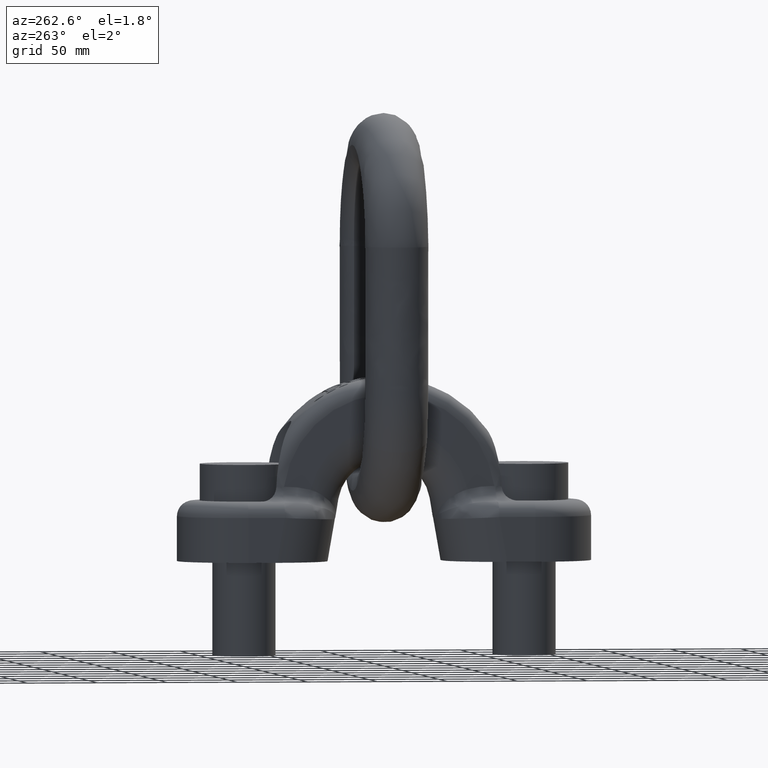
[diagram: clean part render]
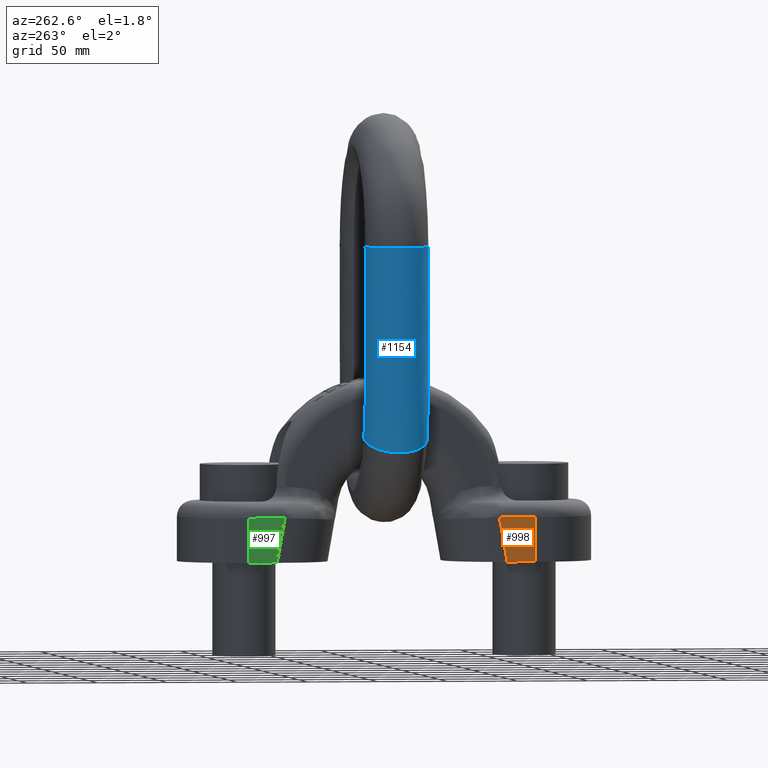
[diagram: same view with three faces highlighted in distinct colors, each labeled with its STEP entity id]
A machine part, auxiliary view with three faces highlighted in distinct colors.
Their STEP definitions:

[orange] entity #998 — the highlighted planar face has unit normal (1, 0, 0).
#744=PLANE('',#3649);
#846=FACE_OUTER_BOUND('',#1533,.T.);
#998=ADVANCED_FACE('',(#846),#744,.F.);
#1207=LINE('',#5202,#1321);
#1208=LINE('',#5205,#1322);
#1209=LINE('',#5207,#1323);
#1210=LINE('',#5209,#1324);
#1321=VECTOR('',#3910,1.);
#1322=VECTOR('',#3911,1.);
#1323=VECTOR('',#3912,1.);
#1324=VECTOR('',#3913,1.);
#1533=EDGE_LOOP('',(#2175,#2176,#2177,#2178));
#2175=ORIENTED_EDGE('',*,*,#3277,.F.);
#2176=ORIENTED_EDGE('',*,*,#3278,.T.);
#2177=ORIENTED_EDGE('',*,*,#3279,.T.);
#2178=ORIENTED_EDGE('',*,*,#3280,.T.);
#2993=VERTEX_POINT('',#5203);
#2994=VERTEX_POINT('',#5204);
#2995=VERTEX_POINT('',#5206);
#2996=VERTEX_POINT('',#5208);
#3277=EDGE_CURVE('',#2993,#2994,#1207,.T.);
#3278=EDGE_CURVE('',#2993,#2995,#1208,.T.);
#3279=EDGE_CURVE('',#2995,#2996,#1209,.T.);
#3280=EDGE_CURVE('',#2996,#2994,#1210,.T.);
#3649=AXIS2_PLACEMENT_3D('',#5210,#3914,#3915);
#3910=DIRECTION('',(0.,0.,-1.));
#3911=DIRECTION('',(0.,1.,-4.58769844886429E-16));
#3912=DIRECTION('',(0.,-0.17364817766693,-0.984807753012208));
#3913=DIRECTION('',(0.,-1.,0.));
#3914=DIRECTION('',(1.,0.,0.));
#3915=DIRECTION('',(0.,0.,-1.));
#5202=CARTESIAN_POINT('',(-45.,-102.5,272.));
#5203=CARTESIAN_POINT('',(-45.,-102.5,31.75));
#5204=CARTESIAN_POINT('',(-45.,-102.5,0.));
#5205=CARTESIAN_POINT('',(-45.,102.5,31.7499999999999));
#5206=CARTESIAN_POINT('',(-45.,-76.5415513071216,31.75));
#5207=CARTESIAN_POINT('',(-45.,-80.8998691602371,7.03275119551065));
#5208=CARTESIAN_POINT('',(-45.,-82.1399329446153,0.));
#5209=CARTESIAN_POINT('',(-45.,102.5,0.));
#5210=CARTESIAN_POINT('',(-45.,102.5,272.));

[blue] entity #1154 — the highlighted face is a freeform B-spline surface patch.
#33=(
BOUNDED_CURVE()
B_SPLINE_CURVE(4,(#7284,#7285,#7286,#7287,#7288,#7289,#7290,#7291,#7292,
#7293,#7294,#7295,#7296,#7297),.UNSPECIFIED.,.T.,.F.)
B_SPLINE_CURVE_WITH_KNOTS((2,3,3,3,3,3,2),(-0.25,0.,0.25,0.5,0.75,1.,1.25),
 .UNSPECIFIED.)
CURVE()
GEOMETRIC_REPRESENTATION_ITEM()
RATIONAL_B_SPLINE_CURVE((1.0166117137858,1.0166117137858,0.958470715535492,
1.0166117137858,1.0166117137858,0.958470715535492,1.0166117137858,1.0166117137858,
0.958470715535492,1.0166117137858,1.0166117137858,0.958470715535492,1.0166117137858,
1.0166117137858))
REPRESENTATION_ITEM('')
);
#34=(
BOUNDED_CURVE()
B_SPLINE_CURVE(4,(#7495,#7496,#7497,#7498,#7499,#7500,#7501,#7502,#7503,
#7504,#7505,#7506,#7507,#7508),.UNSPECIFIED.,.T.,.F.)
B_SPLINE_CURVE_WITH_KNOTS((2,3,3,3,3,3,2),(-0.25,0.,0.25,0.5,0.75,1.,1.25),
 .UNSPECIFIED.)
CURVE()
GEOMETRIC_REPRESENTATION_ITEM()
RATIONAL_B_SPLINE_CURVE((1.0166117137858,1.0166117137858,0.958470715535492,
1.0166117137858,1.0166117137858,0.958470715535492,1.0166117137858,1.0166117137858,
0.958470715535492,1.0166117137858,1.0166117137858,0.958470715535492,1.0166117137858,
1.0166117137858))
REPRESENTATION_ITEM('')
);
#830=(
BOUNDED_SURFACE()
B_SPLINE_SURFACE(4,3,((#7818,#7819,#7820,#7821,#7822,#7823,#7824,#7825,
#7826,#7827,#7828,#7829,#7830,#7831),(#7832,#7833,#7834,#7835,#7836,#7837,
#7838,#7839,#7840,#7841,#7842,#7843,#7844,#7845),(#7846,#7847,#7848,#7849,
#7850,#7851,#7852,#7853,#7854,#7855,#7856,#7857,#7858,#7859),(#7860,#7861,
#7862,#7863,#7864,#7865,#7866,#7867,#7868,#7869,#7870,#7871,#7872,#7873),
(#7874,#7875,#7876,#7877,#7878,#7879,#7880,#7881,#7882,#7883,#7884,#7885,
#7886,#7887),(#7888,#7889,#7890,#7891,#7892,#7893,#7894,#7895,#7896,#7897,
#7898,#7899,#7900,#7901),(#7902,#7903,#7904,#7905,#7906,#7907,#7908,#7909,
#7910,#7911,#7912,#7913,#7914,#7915),(#7916,#7917,#7918,#7919,#7920,#7921,
#7922,#7923,#7924,#7925,#7926,#7927,#7928,#7929),(#7930,#7931,#7932,#7933,
#7934,#7935,#7936,#7937,#7938,#7939,#7940,#7941,#7942,#7943),(#7944,#7945,
#7946,#7947,#7948,#7949,#7950,#7951,#7952,#7953,#7954,#7955,#7956,#7957),
(#7958,#7959,#7960,#7961,#7962,#7963,#7964,#7965,#7966,#7967,#7968,#7969,
#7970,#7971),(#7972,#7973,#7974,#7975,#7976,#7977,#7978,#7979,#7980,#7981,
#7982,#7983,#7984,#7985),(#7986,#7987,#7988,#7989,#7990,#7991,#7992,#7993,
#7994,#7995,#7996,#7997,#7998,#7999),(#8000,#8001,#8002,#8003,#8004,#8005,
#8006,#8007,#8008,#8009,#8010,#8011,#8012,#8013)),.UNSPECIFIED.,.T.,.F.,
 .F.)
B_SPLINE_SURFACE_WITH_KNOTS((2,3,3,3,3,3,2),(4,1,1,1,1,1,1,1,1,1,1,4),(-0.25,
0.,0.25,0.5,0.75,1.,1.25),(0.,0.0301956962786513,0.0616307544750305,0.125500235048722,
0.52652954356125,0.673694963521801,0.713455303305868,0.720126465038452,
0.727987471572074,0.747587256894211,0.825535431106314,1.),.UNSPECIFIED.)
GEOMETRIC_REPRESENTATION_ITEM()
RATIONAL_B_SPLINE_SURFACE(((1.0166117137858,1.0166117137858,1.0166117137858,
1.0166117137858,1.01661171378581,1.0166117137858,1.0166117137858,1.0166117137858,
1.0166117137858,1.0166117137858,1.01661171378581,1.0166117137858,1.0166117137858,
1.0166117137858),(1.0166117137858,1.0166117137858,1.0166117137858,1.0166117137858,
1.01661171378581,1.0166117137858,1.0166117137858,1.0166117137858,1.0166117137858,
1.0166117137858,1.01661171378581,1.0166117137858,1.0166117137858,1.0166117137858),
(0.958470715535492,0.958470715535492,0.958470715535493,0.958470715535492,
0.958470715535493,0.958470715535491,0.958470715535493,0.958470715535493,
0.958470715535492,0.958470715535492,0.958470715535492,0.958470715535493,
0.958470715535492,0.958470715535492),(1.0166117137858,1.0166117137858,1.0166117137858,
1.0166117137858,1.01661171378581,1.0166117137858,1.0166117137858,1.0166117137858,
1.0166117137858,1.0166117137858,1.01661171378581,1.0166117137858,1.0166117137858,
1.0166117137858),(1.0166117137858,1.0166117137858,1.0166117137858,1.0166117137858,
1.01661171378581,1.0166117137858,1.0166117137858,1.0166117137858,1.0166117137858,
1.0166117137858,1.01661171378581,1.0166117137858,1.0166117137858,1.0166117137858),
(0.958470715535492,0.958470715535492,0.958470715535493,0.958470715535492,
0.958470715535493,0.958470715535491,0.958470715535493,0.958470715535493,
0.958470715535492,0.958470715535492,0.958470715535492,0.958470715535493,
0.958470715535492,0.958470715535492),(1.0166117137858,1.0166117137858,1.0166117137858,
1.0166117137858,1.01661171378581,1.0166117137858,1.0166117137858,1.0166117137858,
1.0166117137858,1.0166117137858,1.01661171378581,1.0166117137858,1.0166117137858,
1.0166117137858),(1.0166117137858,1.0166117137858,1.0166117137858,1.0166117137858,
1.01661171378581,1.0166117137858,1.0166117137858,1.0166117137858,1.0166117137858,
1.0166117137858,1.01661171378581,1.0166117137858,1.0166117137858,1.0166117137858),
(0.958470715535492,0.958470715535492,0.958470715535493,0.958470715535492,
0.958470715535493,0.958470715535491,0.958470715535493,0.958470715535493,
0.958470715535492,0.958470715535492,0.958470715535492,0.958470715535493,
0.958470715535492,0.958470715535492),(1.0166117137858,1.0166117137858,1.0166117137858,
1.0166117137858,1.01661171378581,1.0166117137858,1.0166117137858,1.0166117137858,
1.0166117137858,1.0166117137858,1.01661171378581,1.0166117137858,1.0166117137858,
1.0166117137858),(1.0166117137858,1.0166117137858,1.0166117137858,1.0166117137858,
1.01661171378581,1.0166117137858,1.0166117137858,1.0166117137858,1.0166117137858,
1.0166117137858,1.01661171378581,1.0166117137858,1.0166117137858,1.0166117137858),
(0.958470715535492,0.958470715535492,0.958470715535493,0.958470715535492,
0.958470715535493,0.958470715535491,0.958470715535493,0.958470715535493,
0.958470715535492,0.958470715535492,0.958470715535492,0.958470715535493,
0.958470715535492,0.958470715535492),(1.0166117137858,1.0166117137858,1.0166117137858,
1.0166117137858,1.01661171378581,1.0166117137858,1.0166117137858,1.0166117137858,
1.0166117137858,1.0166117137858,1.01661171378581,1.0166117137858,1.0166117137858,
1.0166117137858),(1.0166117137858,1.0166117137858,1.0166117137858,1.0166117137858,
1.01661171378581,1.0166117137858,1.0166117137858,1.0166117137858,1.0166117137858,
1.0166117137858,1.01661171378581,1.0166117137858,1.0166117137858,1.0166117137858)))
REPRESENTATION_ITEM('')
SURFACE()
);
#1154=ADVANCED_FACE('',(#1508,#1509),#830,.F.);
#1508=FACE_BOUND('',#1705,.T.);
#1509=FACE_BOUND('',#1706,.T.);
#1705=EDGE_LOOP('',(#2871));
#1706=EDGE_LOOP('',(#2872));
#2871=ORIENTED_EDGE('',*,*,#3573,.F.);
#2872=ORIENTED_EDGE('',*,*,#3572,.F.);
#3152=VERTEX_POINT('',#7298);
#3153=VERTEX_POINT('',#7509);
#3572=EDGE_CURVE('',#3152,#3152,#33,.T.);
#3573=EDGE_CURVE('',#3153,#3153,#34,.T.);
#7284=CARTESIAN_POINT('',(-70.0486418117582,22.5,85.2933427704464));
#7285=CARTESIAN_POINT('',(-55.7523457018072,22.5,92.2749806847748));
#7286=CARTESIAN_POINT('',(-46.256551933876,18.5225243558257,96.91227927505));
#7287=CARTESIAN_POINT('',(-42.6824779063882,7.95495128834865,98.657688753632));
#7288=CARTESIAN_POINT('',(-42.6824779063882,-7.95495128834866,98.657688753632));
#7289=CARTESIAN_POINT('',(-46.256551933876,-18.5225243558257,96.9122792750499));
#7290=CARTESIAN_POINT('',(-55.7523457018072,-22.5,92.2749806847748));
#7291=CARTESIAN_POINT('',(-70.0486418117582,-22.5,85.2933427704463));
#7292=CARTESIAN_POINT('',(-79.5444355796894,-18.5225243558257,80.6560441801712));
#7293=CARTESIAN_POINT('',(-83.1185096071771,-7.95495128834865,78.910634701589));
#7294=CARTESIAN_POINT('',(-83.1185096071771,7.95495128834865,78.910634701589));
#7295=CARTESIAN_POINT('',(-79.5444355796894,18.5225243558257,80.6560441801712));
#7296=CARTESIAN_POINT('',(-70.0486418117582,22.5,85.2933427704464));
#7297=CARTESIAN_POINT('',(-55.7523457018072,22.5,92.2749806847748));
#7298=CARTESIAN_POINT('',(-62.9004937567827,22.5,88.7841617276106));
#7495=CARTESIAN_POINT('',(-62.0451470897856,22.5,224.499338483112));
#7496=CARTESIAN_POINT('',(-77.9550748930975,22.5,224.500926229327));
#7497=CARTESIAN_POINT('',(-88.522664716434,18.5225243558257,224.501980831896));
#7498=CARTESIAN_POINT('',(-92.5001466672619,7.95495128834866,224.50237776845));
#7499=CARTESIAN_POINT('',(-92.500146667262,-7.95495128834866,224.50237776845));
#7500=CARTESIAN_POINT('',(-88.522664716434,-18.5225243558257,224.501980831896));
#7501=CARTESIAN_POINT('',(-77.9550748930974,-22.5,224.500926229327));
#7502=CARTESIAN_POINT('',(-62.0451470897856,-22.5,224.499338483112));
#7503=CARTESIAN_POINT('',(-51.477557266449,-18.5225243558257,224.498283880543));
#7504=CARTESIAN_POINT('',(-47.500075315621,-7.95495128834866,224.497886943989));
#7505=CARTESIAN_POINT('',(-47.500075315621,7.95495128834866,224.497886943989));
#7506=CARTESIAN_POINT('',(-51.477557266449,18.5225243558257,224.498283880543));
#7507=CARTESIAN_POINT('',(-62.0451470897856,22.5,224.499338483112));
#7508=CARTESIAN_POINT('',(-77.9550748930975,22.5,224.500926229327));
#7509=CARTESIAN_POINT('',(-70.0001109914415,22.5,224.500132356219));
#7818=CARTESIAN_POINT('',(-62.0451470897856,22.5,224.499338483112));
#7819=CARTESIAN_POINT('',(-62.0640406104352,22.5,222.791607818432));
#7820=CARTESIAN_POINT('',(-62.0375388386696,22.5,219.312061757263));
#7821=CARTESIAN_POINT('',(-62.0472889828557,22.5000000000001,212.604161770742));
#7822=CARTESIAN_POINT('',(-62.043259017658,22.4999999999999,186.197509178475));
#7823=CARTESIAN_POINT('',(-62.0458549339541,22.5000000000001,158.05746853171));
#7824=CARTESIAN_POINT('',(-62.0449270768642,22.4999999999999,129.874953583138));
#7825=CARTESIAN_POINT('',(-62.0447203945396,22.5,121.894860004289));
#7826=CARTESIAN_POINT('',(-62.0459300764148,22.5,119.483682202774));
#7827=CARTESIAN_POINT('',(-62.0388185165922,22.5,118.245066610178));
#7828=CARTESIAN_POINT('',(-61.919485424896,22.5,114.337684464879));
#7829=CARTESIAN_POINT('',(-60.7637969264693,22.5,104.797700755889));
#7830=CARTESIAN_POINT('',(-58.1065222045986,22.5,97.0848502297751));
#7831=CARTESIAN_POINT('',(-55.7523457018072,22.5,92.2749806847748));
#7832=CARTESIAN_POINT('',(-77.9550748930975,22.5,224.500926229327));
#7833=CARTESIAN_POINT('',(-77.9788131850723,22.5,222.554918565148));
#7834=CARTESIAN_POINT('',(-77.9455156960714,22.5,219.405162539273));
#7835=CARTESIAN_POINT('',(-77.9577660211312,22.5,212.574512517521));
#7836=CARTESIAN_POINT('',(-77.9527026720455,22.5,186.225665429765));
#7837=CARTESIAN_POINT('',(-77.9559642462177,22.5000000000001,158.037839755944));
#7838=CARTESIAN_POINT('',(-77.9547984633594,22.5,129.883565687387));
#7839=CARTESIAN_POINT('',(-77.9545387825164,22.5,121.886729699343));
#7840=CARTESIAN_POINT('',(-77.9560586570852,22.5,119.50272199293));
#7841=CARTESIAN_POINT('',(-77.947123515425,22.5,117.915683013602));
#7842=CARTESIAN_POINT('',(-77.7971904338426,22.5,113.017387299509));
#7843=CARTESIAN_POINT('',(-76.3451544943102,22.5,101.025869586488));
#7844=CARTESIAN_POINT('',(-73.0064880607341,22.5,91.3359420075726));
#7845=CARTESIAN_POINT('',(-70.0486418117582,22.5,85.2933427704464));
#7846=CARTESIAN_POINT('',(-88.522664716434,18.5225243558257,224.501980831896));
#7847=CARTESIAN_POINT('',(-88.5496209712296,18.5225243558257,222.397706353049));
#7848=CARTESIAN_POINT('',(-88.5118096746749,18.5225243558256,219.46700134135));
#7849=CARTESIAN_POINT('',(-88.5257206537796,18.5225243558257,212.554819081418));
#7850=CARTESIAN_POINT('',(-88.5199709171002,18.5225243558256,186.244367193737));
#7851=CARTESIAN_POINT('',(-88.5236746302617,18.5225243558257,158.024802056868));
#7852=CARTESIAN_POINT('',(-88.5223508138811,18.5225243558257,129.889285963829));
#7853=CARTESIAN_POINT('',(-88.5220559307035,18.5225243558257,121.881329440533));
#7854=CARTESIAN_POINT('',(-88.5237818394663,18.5225243558257,119.515368479777));
#7855=CARTESIAN_POINT('',(-88.5136354500175,18.5225243558257,117.696901961532));
#7856=CARTESIAN_POINT('',(-88.3433774401444,18.5225243558257,112.140428015907));
#7857=CARTESIAN_POINT('',(-86.6945035110545,18.5225243558257,98.52056816879));
#7858=CARTESIAN_POINT('',(-82.9032474612752,18.5225243558257,87.5174391975476));
#7859=CARTESIAN_POINT('',(-79.5444355796894,18.5225243558257,80.6560441801712));
#7860=CARTESIAN_POINT('',(-92.5001466672619,7.95495128834866,224.50237776845));
#7861=CARTESIAN_POINT('',(-92.5283141148888,7.95495128834867,222.338534039728));
#7862=CARTESIAN_POINT('',(-92.4888038890254,7.95495128834866,219.490276536853));
#7863=CARTESIAN_POINT('',(-92.5033399133483,7.95495128834866,212.547406768113));
#7864=CARTESIAN_POINT('',(-92.4973318306971,7.95495128834868,186.25140625656));
#7865=CARTESIAN_POINT('',(-92.5012019583276,7.95495128834864,158.019894862925));
#7866=CARTESIAN_POINT('',(-92.4998186605049,7.95495128834867,129.891438989891));
#7867=CARTESIAN_POINT('',(-92.4995105276978,7.95495128834867,121.879296864296));
#7868=CARTESIAN_POINT('',(-92.5013139846338,7.95495128834866,119.520128427317));
#7869=CARTESIAN_POINT('',(-92.4907116997257,7.95495128834868,117.614556062388));
#7870=CARTESIAN_POINT('',(-92.3128036923808,7.95495128834864,111.810353724564));
#7871=CARTESIAN_POINT('',(-90.5898429030151,7.95495128834869,97.5776103764401));
#7872=CARTESIAN_POINT('',(-86.6282389253091,7.95495128834867,86.080212141997));
#7873=CARTESIAN_POINT('',(-83.1185096071771,7.95495128834865,78.910634701589));
#7874=CARTESIAN_POINT('',(-92.500146667262,-7.95495128834866,224.50237776845));
#7875=CARTESIAN_POINT('',(-92.5283141148888,-7.95495128834866,222.338534039728));
#7876=CARTESIAN_POINT('',(-92.4888038890254,-7.95495128834866,219.490276536853));
#7877=CARTESIAN_POINT('',(-92.5033399133483,-7.95495128834865,212.547406768113));
#7878=CARTESIAN_POINT('',(-92.4973318306971,-7.95495128834868,186.25140625656));
#7879=CARTESIAN_POINT('',(-92.5012019583276,-7.95495128834864,158.019894862925));
#7880=CARTESIAN_POINT('',(-92.4998186605049,-7.95495128834867,129.891438989891));
#7881=CARTESIAN_POINT('',(-92.4995105276978,-7.95495128834866,121.879296864296));
#7882=CARTESIAN_POINT('',(-92.5013139846338,-7.95495128834866,119.520128427317));
#7883=CARTESIAN_POINT('',(-92.4907116997257,-7.95495128834866,117.614556062388));
#7884=CARTESIAN_POINT('',(-92.3128036923808,-7.95495128834865,111.810353724564));
#7885=CARTESIAN_POINT('',(-90.5898429030151,-7.95495128834867,97.5776103764401));
#7886=CARTESIAN_POINT('',(-86.6282389253091,-7.95495128834866,86.080212141997));
#7887=CARTESIAN_POINT('',(-83.1185096071771,-7.95495128834865,78.910634701589));
#7888=CARTESIAN_POINT('',(-88.522664716434,-18.5225243558257,224.501980831896));
#7889=CARTESIAN_POINT('',(-88.5496209712296,-18.5225243558257,222.397706353049));
#7890=CARTESIAN_POINT('',(-88.5118096746749,-18.5225243558256,219.46700134135));
#7891=CARTESIAN_POINT('',(-88.5257206537795,-18.5225243558257,212.554819081418));
#7892=CARTESIAN_POINT('',(-88.5199709171003,-18.5225243558256,186.244367193737));
#7893=CARTESIAN_POINT('',(-88.5236746302616,-18.5225243558257,158.024802056868));
#7894=CARTESIAN_POINT('',(-88.5223508138812,-18.5225243558257,129.889285963829));
#7895=CARTESIAN_POINT('',(-88.5220559307035,-18.5225243558257,121.881329440533));
#7896=CARTESIAN_POINT('',(-88.5237818394663,-18.5225243558257,119.515368479777));
#7897=CARTESIAN_POINT('',(-88.5136354500175,-18.5225243558257,117.696901961532));
#7898=CARTESIAN_POINT('',(-88.3433774401443,-18.5225243558257,112.140428015907));
#7899=CARTESIAN_POINT('',(-86.6945035110546,-18.5225243558257,98.52056816879));
#7900=CARTESIAN_POINT('',(-82.9032474612752,-18.5225243558257,87.5174391975476));
#7901=CARTESIAN_POINT('',(-79.5444355796894,-18.5225243558257,80.6560441801712));
#7902=CARTESIAN_POINT('',(-77.9550748930974,-22.5,224.500926229327));
#7903=CARTESIAN_POINT('',(-77.9788131850723,-22.5,222.554918565148));
#7904=CARTESIAN_POINT('',(-77.9455156960713,-22.5,219.405162539272));
#7905=CARTESIAN_POINT('',(-77.9577660211312,-22.5,212.574512517521));
#7906=CARTESIAN_POINT('',(-77.9527026720455,-22.5,186.225665429765));
#7907=CARTESIAN_POINT('',(-77.9559642462177,-22.5000000000001,158.037839755944));
#7908=CARTESIAN_POINT('',(-77.9547984633594,-22.5,129.883565687387));
#7909=CARTESIAN_POINT('',(-77.9545387825164,-22.5,121.886729699343));
#7910=CARTESIAN_POINT('',(-77.9560586570852,-22.5,119.50272199293));
#7911=CARTESIAN_POINT('',(-77.947123515425,-22.5,117.915683013602));
#7912=CARTESIAN_POINT('',(-77.7971904338426,-22.5,113.017387299509));
#7913=CARTESIAN_POINT('',(-76.3451544943102,-22.5,101.025869586488));
#7914=CARTESIAN_POINT('',(-73.0064880607341,-22.5,91.3359420075726));
#7915=CARTESIAN_POINT('',(-70.0486418117582,-22.5,85.2933427704463));
#7916=CARTESIAN_POINT('',(-62.0451470897856,-22.5,224.499338483112));
#7917=CARTESIAN_POINT('',(-62.0640406104352,-22.5,222.791607818432));
#7918=CARTESIAN_POINT('',(-62.0375388386697,-22.5,219.312061757263));
#7919=CARTESIAN_POINT('',(-62.0472889828556,-22.5,212.604161770742));
#7920=CARTESIAN_POINT('',(-62.0432590176581,-22.5,186.197509178475));
#7921=CARTESIAN_POINT('',(-62.0458549339541,-22.5000000000001,158.05746853171));
#7922=CARTESIAN_POINT('',(-62.0449270768642,-22.5,129.874953583138));
#7923=CARTESIAN_POINT('',(-62.0447203945396,-22.5,121.894860004289));
#7924=CARTESIAN_POINT('',(-62.0459300764148,-22.5,119.483682202774));
#7925=CARTESIAN_POINT('',(-62.0388185165922,-22.5,118.245066610178));
#7926=CARTESIAN_POINT('',(-61.9194854248959,-22.5,114.337684464879));
#7927=CARTESIAN_POINT('',(-60.7637969264693,-22.5,104.797700755889));
#7928=CARTESIAN_POINT('',(-58.1065222045987,-22.5,97.0848502297751));
#7929=CARTESIAN_POINT('',(-55.7523457018072,-22.5,92.2749806847748));
#7930=CARTESIAN_POINT('',(-51.477557266449,-18.5225243558257,224.498283880543));
#7931=CARTESIAN_POINT('',(-51.4932328242779,-18.5225243558257,222.948820030531));
#7932=CARTESIAN_POINT('',(-51.4712448600661,-18.5225243558256,219.250222955185));
#7933=CARTESIAN_POINT('',(-51.4793343502073,-18.5225243558257,212.623855206846));
#7934=CARTESIAN_POINT('',(-51.4759907726033,-18.5225243558256,186.178807414501));
#7935=CARTESIAN_POINT('',(-51.4781445499102,-18.5225243558257,158.070506230788));
#7936=CARTESIAN_POINT('',(-51.4773747263424,-18.5225243558257,129.869233306695));
#7937=CARTESIAN_POINT('',(-51.4772032463525,-18.5225243558257,121.900260263099));
#7938=CARTESIAN_POINT('',(-51.4782068940337,-18.5225243558257,119.471035715927));
#7939=CARTESIAN_POINT('',(-51.4723065819997,-18.5225243558257,118.463847662247));
#7940=CARTESIAN_POINT('',(-51.3732984185945,-18.5225243558257,115.21464374848));
#7941=CARTESIAN_POINT('',(-50.4144479097246,-18.5225243558257,107.303002173586));
#7942=CARTESIAN_POINT('',(-48.2097628040574,-18.5225243558257,100.9033530398));
#7943=CARTESIAN_POINT('',(-46.256551933876,-18.5225243558257,96.9122792750499));
#7944=CARTESIAN_POINT('',(-47.500075315621,-7.95495128834866,224.497886943989));
#7945=CARTESIAN_POINT('',(-47.5145396806186,-7.95495128834867,223.007992343852));
#7946=CARTESIAN_POINT('',(-47.4942506457157,-7.95495128834866,219.226947759683));
#7947=CARTESIAN_POINT('',(-47.5017150906385,-7.95495128834866,212.631267520151));
#7948=CARTESIAN_POINT('',(-47.4986298590064,-7.95495128834868,186.171768351679));
#7949=CARTESIAN_POINT('',(-47.5006172218441,-7.95495128834864,158.075413424728));
#7950=CARTESIAN_POINT('',(-47.4999068797186,-7.95495128834868,129.867080280633));
#7951=CARTESIAN_POINT('',(-47.4997486493584,-7.95495128834866,121.902292839336));
#7952=CARTESIAN_POINT('',(-47.500674748866,-7.95495128834867,119.466275768387));
#7953=CARTESIAN_POINT('',(-47.4952303322916,-7.95495128834867,118.546193561391));
#7954=CARTESIAN_POINT('',(-47.4038721663578,-7.95495128834864,115.544718039823));
#7955=CARTESIAN_POINT('',(-46.5191085177644,-7.95495128834869,108.245959965937));
#7956=CARTESIAN_POINT('',(-44.4847713400236,-7.95495128834867,102.340580095351));
#7957=CARTESIAN_POINT('',(-42.6824779063882,-7.95495128834866,98.657688753632));
#7958=CARTESIAN_POINT('',(-47.500075315621,7.95495128834866,224.497886943989));
#7959=CARTESIAN_POINT('',(-47.5145396806186,7.95495128834866,223.007992343852));
#7960=CARTESIAN_POINT('',(-47.4942506457157,7.95495128834866,219.226947759683));
#7961=CARTESIAN_POINT('',(-47.5017150906384,7.95495128834865,212.631267520151));
#7962=CARTESIAN_POINT('',(-47.4986298590065,7.95495128834867,186.171768351679));
#7963=CARTESIAN_POINT('',(-47.500617221844,7.95495128834864,158.075413424728));
#7964=CARTESIAN_POINT('',(-47.4999068797187,7.95495128834866,129.867080280633));
#7965=CARTESIAN_POINT('',(-47.4997486493584,7.95495128834866,121.902292839336));
#7966=CARTESIAN_POINT('',(-47.500674748866,7.95495128834866,119.466275768387));
#7967=CARTESIAN_POINT('',(-47.4952303322916,7.95495128834867,118.546193561391));
#7968=CARTESIAN_POINT('',(-47.4038721663578,7.95495128834864,115.544718039823));
#7969=CARTESIAN_POINT('',(-46.5191085177644,7.95495128834867,108.245959965937));
#7970=CARTESIAN_POINT('',(-44.4847713400236,7.95495128834866,102.340580095351));
#7971=CARTESIAN_POINT('',(-42.6824779063882,7.95495128834865,98.657688753632));
#7972=CARTESIAN_POINT('',(-51.477557266449,18.5225243558257,224.498283880543));
#7973=CARTESIAN_POINT('',(-51.4932328242779,18.5225243558257,222.948820030531));
#7974=CARTESIAN_POINT('',(-51.4712448600661,18.5225243558256,219.250222955185));
#7975=CARTESIAN_POINT('',(-51.4793343502073,18.5225243558257,212.623855206846));
#7976=CARTESIAN_POINT('',(-51.4759907726032,18.5225243558256,186.178807414501));
#7977=CARTESIAN_POINT('',(-51.4781445499102,18.5225243558258,158.070506230788));
#7978=CARTESIAN_POINT('',(-51.4773747263424,18.5225243558256,129.869233306695));
#7979=CARTESIAN_POINT('',(-51.4772032463525,18.5225243558257,121.900260263099));
#7980=CARTESIAN_POINT('',(-51.4782068940336,18.5225243558257,119.471035715927));
#7981=CARTESIAN_POINT('',(-51.4723065819998,18.5225243558257,118.463847662247));
#7982=CARTESIAN_POINT('',(-51.3732984185945,18.5225243558256,115.21464374848));
#7983=CARTESIAN_POINT('',(-50.4144479097246,18.5225243558257,107.303002173586));
#7984=CARTESIAN_POINT('',(-48.2097628040574,18.5225243558257,100.9033530398));
#7985=CARTESIAN_POINT('',(-46.256551933876,18.5225243558257,96.91227927505));
#7986=CARTESIAN_POINT('',(-62.0451470897856,22.5,224.499338483112));
#7987=CARTESIAN_POINT('',(-62.0640406104352,22.5,222.791607818432));
#7988=CARTESIAN_POINT('',(-62.0375388386696,22.5,219.312061757263));
#7989=CARTESIAN_POINT('',(-62.0472889828557,22.5000000000001,212.604161770742));
#7990=CARTESIAN_POINT('',(-62.043259017658,22.4999999999999,186.197509178475));
#7991=CARTESIAN_POINT('',(-62.0458549339541,22.5000000000001,158.05746853171));
#7992=CARTESIAN_POINT('',(-62.0449270768642,22.4999999999999,129.874953583138));
#7993=CARTESIAN_POINT('',(-62.0447203945396,22.5,121.894860004289));
#7994=CARTESIAN_POINT('',(-62.0459300764148,22.5,119.483682202774));
#7995=CARTESIAN_POINT('',(-62.0388185165922,22.5,118.245066610178));
#7996=CARTESIAN_POINT('',(-61.919485424896,22.5,114.337684464879));
#7997=CARTESIAN_POINT('',(-60.7637969264693,22.5,104.797700755889));
#7998=CARTESIAN_POINT('',(-58.1065222045986,22.5,97.0848502297751));
#7999=CARTESIAN_POINT('',(-55.7523457018072,22.5,92.2749806847748));
#8000=CARTESIAN_POINT('',(-77.9550748930975,22.5,224.500926229327));
#8001=CARTESIAN_POINT('',(-77.9788131850723,22.5,222.554918565148));
#8002=CARTESIAN_POINT('',(-77.9455156960714,22.5,219.405162539273));
#8003=CARTESIAN_POINT('',(-77.9577660211312,22.5,212.574512517521));
#8004=CARTESIAN_POINT('',(-77.9527026720455,22.5,186.225665429765));
#8005=CARTESIAN_POINT('',(-77.9559642462177,22.5000000000001,158.037839755944));
#8006=CARTESIAN_POINT('',(-77.9547984633594,22.5,129.883565687387));
#8007=CARTESIAN_POINT('',(-77.9545387825164,22.5,121.886729699343));
#8008=CARTESIAN_POINT('',(-77.9560586570852,22.5,119.50272199293));
#8009=CARTESIAN_POINT('',(-77.947123515425,22.5,117.915683013602));
#8010=CARTESIAN_POINT('',(-77.7971904338426,22.5,113.017387299509));
#8011=CARTESIAN_POINT('',(-76.3451544943102,22.5,101.025869586488));
#8012=CARTESIAN_POINT('',(-73.0064880607341,22.5,91.3359420075726));
#8013=CARTESIAN_POINT('',(-70.0486418117582,22.5,85.2933427704464));

[green] entity #997 — the highlighted planar face has unit normal (1, 0, 0).
#743=PLANE('',#3648);
#845=FACE_OUTER_BOUND('',#1532,.T.);
#997=ADVANCED_FACE('',(#845),#743,.F.);
#1203=LINE('',#5193,#1317);
#1204=LINE('',#5196,#1318);
#1205=LINE('',#5198,#1319);
#1206=LINE('',#5200,#1320);
#1317=VECTOR('',#3904,1.);
#1318=VECTOR('',#3905,1.);
#1319=VECTOR('',#3906,1.);
#1320=VECTOR('',#3907,1.);
#1532=EDGE_LOOP('',(#2171,#2172,#2173,#2174));
#2171=ORIENTED_EDGE('',*,*,#3273,.T.);
#2172=ORIENTED_EDGE('',*,*,#3274,.T.);
#2173=ORIENTED_EDGE('',*,*,#3275,.T.);
#2174=ORIENTED_EDGE('',*,*,#3276,.T.);
#2989=VERTEX_POINT('',#5194);
#2990=VERTEX_POINT('',#5195);
#2991=VERTEX_POINT('',#5197);
#2992=VERTEX_POINT('',#5199);
#3273=EDGE_CURVE('',#2989,#2990,#1203,.T.);
#3274=EDGE_CURVE('',#2990,#2991,#1204,.T.);
#3275=EDGE_CURVE('',#2991,#2992,#1205,.T.);
#3276=EDGE_CURVE('',#2992,#2989,#1206,.T.);
#3648=AXIS2_PLACEMENT_3D('',#5201,#3908,#3909);
#3904=DIRECTION('',(0.,-0.17364817766693,0.984807753012208));
#3905=DIRECTION('',(0.,1.,4.58769844886429E-16));
#3906=DIRECTION('',(0.,0.,-1.));
#3907=DIRECTION('',(0.,-1.,0.));
#3908=DIRECTION('',(1.,0.,0.));
#3909=DIRECTION('',(0.,0.,-1.));
#5193=CARTESIAN_POINT('',(-45.,73.1219756611565,51.1433771917695));
#5194=CARTESIAN_POINT('',(-45.,82.1399329446153,0.));
#5195=CARTESIAN_POINT('',(-45.,76.5415513071216,31.75));
#5196=CARTESIAN_POINT('',(-45.,102.5,31.75));
#5197=CARTESIAN_POINT('',(-45.,102.5,31.75));
#5198=CARTESIAN_POINT('',(-45.,102.5,272.));
#5199=CARTESIAN_POINT('',(-45.,102.5,0.));
#5200=CARTESIAN_POINT('',(-45.,102.5,0.));
#5201=CARTESIAN_POINT('',(-45.,102.5,272.));